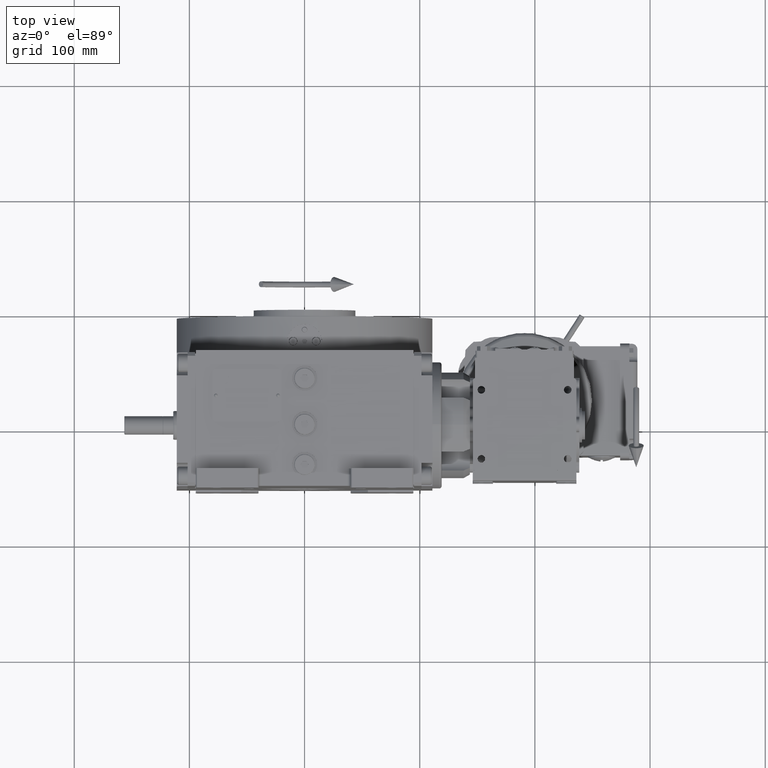
[diagram: clean part render]
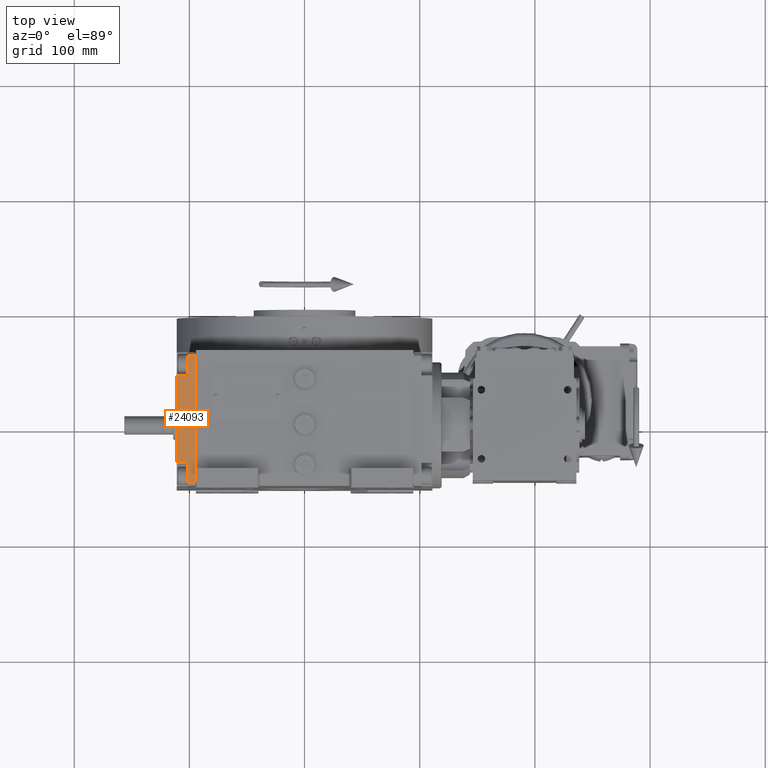
[diagram: same view with one face highlighted and labeled with its STEP entity id]
A machine part, top view. The second image highlights one B-rep face of the part: STEP entity #24093.
In plain terms, the highlighted planar face has unit normal (-0, 0, 1).
Its self-contained STEP definition (entity closure, byte-faithful):
#756 = DIRECTION ( 'NONE',  ( -1.000000000000000000, -5.519388699431657872E-29, -3.164135620181696140E-14 ) ) ;
#1301 = ORIENTED_EDGE ( 'NONE', *, *, #67027, .T. ) ;
#3220 = DIRECTION ( 'NONE',  ( -1.000000000000000000, -5.519388699431657872E-29, -3.164135620181696140E-14 ) ) ;
#3773 = ORIENTED_EDGE ( 'NONE', *, *, #94769, .T. ) ;
#4130 = LINE ( 'NONE', #10723, #74815 ) ;
#8453 = VERTEX_POINT ( 'NONE', #23659 ) ;
#8973 = VERTEX_POINT ( 'NONE', #70602 ) ;
#9379 = LINE ( 'NONE', #65544, #37175 ) ;
#10186 = ORIENTED_EDGE ( 'NONE', *, *, #10409, .F. ) ;
#10409 = EDGE_CURVE ( 'NONE', #89058, #8973, #9379, .T. ) ;
#10723 = CARTESIAN_POINT ( 'NONE',  ( -33.50000000000184741, -16.00000000000000000, -58.00000000000105160 ) ) ;
#11220 = DIRECTION ( 'NONE',  ( -1.000000000000000000, -5.519388699431657872E-29, -3.164135620181696140E-14 ) ) ;
#12253 = CARTESIAN_POINT ( 'NONE',  ( 62.49999999999813127, 0.000000000000000000, -57.99999999999788969 ) ) ;
#15434 = ORIENTED_EDGE ( 'NONE', *, *, #56815, .T. ) ;
#18865 = VERTEX_POINT ( 'NONE', #93141 ) ;
#20063 = ORIENTED_EDGE ( 'NONE', *, *, #22031, .F. ) ;
#21143 = CARTESIAN_POINT ( 'NONE',  ( -33.50000000000184741, -6.499999999999992006, -58.00000000000105160 ) ) ;
#22031 = EDGE_CURVE ( 'NONE', #8453, #55339, #37527, .T. ) ;
#23003 = VECTOR ( 'NONE', #11220, 1000.000000000000000 ) ;
#23213 = DIRECTION ( 'NONE',  ( -5.519166210550862449E-29, -1.000000000000000000, -4.218847493575605898E-15 ) ) ;
#23659 = CARTESIAN_POINT ( 'NONE',  ( 42.49999999999815969, -16.00000000000000000, -57.99999999999894129 ) ) ;
#24093 = ADVANCED_FACE ( 'NONE', ( #90199 ), #88217, .T. ) ;
#24426 = VECTOR ( 'NONE', #756, 1000.000000000000000 ) ;
#26274 = CARTESIAN_POINT ( 'NONE',  ( 59.49999999999815259, 0.000000000000000000, -57.99999999999793943 ) ) ;
#26531 = VERTEX_POINT ( 'NONE', #26274 ) ;
#30289 = VECTOR ( 'NONE', #23213, 1000.000000000000000 ) ;
#31928 = CARTESIAN_POINT ( 'NONE',  ( -33.50000000000184741, -6.499999999999992006, -58.00000000000105160 ) ) ;
#32093 = LINE ( 'NONE', #77684, #24426 ) ;
#36278 = VECTOR ( 'NONE', #3220, 1000.000000000000000 ) ;
#37175 = VECTOR ( 'NONE', #72143, 1000.000000000000000 ) ;
#37527 = LINE ( 'NONE', #99289, #57862 ) ;
#40042 = LINE ( 'NONE', #31928, #61878 ) ;
#40586 = CARTESIAN_POINT ( 'NONE',  ( 59.49999999999815259, 0.000000000000000000, -57.99999999999793943 ) ) ;
#44526 = EDGE_CURVE ( 'NONE', #26531, #89058, #80065, .T. ) ;
#49132 = EDGE_CURVE ( 'NONE', #64613, #8973, #40042, .T. ) ;
#51098 = LINE ( 'NONE', #52591, #30289 ) ;
#52591 = CARTESIAN_POINT ( 'NONE',  ( 59.49999999999815259, 0.000000000000000000, -57.99999999999793943 ) ) ;
#55339 = VERTEX_POINT ( 'NONE', #82870 ) ;
#56815 = EDGE_CURVE ( 'NONE', #26531, #18865, #51098, .T. ) ;
#57862 = VECTOR ( 'NONE', #60802, 1000.000000000000000 ) ;
#60802 = DIRECTION ( 'NONE',  ( 5.519166210550862449E-29, 1.000000000000000000, 4.218847493575605898E-15 ) ) ;
#61878 = VECTOR ( 'NONE', #93719, 1000.000000000000000 ) ;
#64613 = VERTEX_POINT ( 'NONE', #21143 ) ;
#65544 = CARTESIAN_POINT ( 'NONE',  ( -50.50000000000184741, 0.000000000000000000, -58.00000000000108002 ) ) ;
#66121 = ORIENTED_EDGE ( 'NONE', *, *, #49132, .T. ) ;
#67027 = EDGE_CURVE ( 'NONE', #90578, #64613, #4130, .T. ) ;
#67091 = ORIENTED_EDGE ( 'NONE', *, *, #84921, .T. ) ;
#67340 = CARTESIAN_POINT ( 'NONE',  ( -33.50000000000184741, -16.00000000000000000, -58.00000000000105160 ) ) ;
#70602 = CARTESIAN_POINT ( 'NONE',  ( -50.50000000000184741, -6.499999999999992006, -58.00000000000108002 ) ) ;
#72143 = DIRECTION ( 'NONE',  ( -5.519166210550862449E-29, -1.000000000000000000, -4.218847493575605898E-15 ) ) ;
#73968 = DIRECTION ( 'NONE',  ( 5.519166210550862449E-29, 1.000000000000000000, 4.218847493575605898E-15 ) ) ;
#74815 = VECTOR ( 'NONE', #73968, 1000.000000000000000 ) ;
#77684 = CARTESIAN_POINT ( 'NONE',  ( 59.49999999999815259, -6.499999999999992006, -57.99999999999793943 ) ) ;
#80065 = LINE ( 'NONE', #40586, #23003 ) ;
#80152 = CARTESIAN_POINT ( 'NONE',  ( 42.49999999999815969, -16.00000000000000000, -57.99999999999894129 ) ) ;
#82587 = DIRECTION ( 'NONE',  ( 3.164135620181696140E-14, -4.218847493575605898E-15, -1.000000000000000000 ) ) ;
#82870 = CARTESIAN_POINT ( 'NONE',  ( 42.49999999999815969, -6.499999999999992006, -57.99999999999894129 ) ) ;
#84921 = EDGE_CURVE ( 'NONE', #8453, #90578, #95867, .T. ) ;
#88217 = PLANE ( 'NONE',  #89005 ) ;
#89005 = AXIS2_PLACEMENT_3D ( 'NONE', #12253, #82587, #95812 ) ;
#89058 = VERTEX_POINT ( 'NONE', #98221 ) ;
#90199 = FACE_OUTER_BOUND ( 'NONE', #96994, .T. ) ;
#90578 = VERTEX_POINT ( 'NONE', #67340 ) ;
#93141 = CARTESIAN_POINT ( 'NONE',  ( 59.49999999999815259, -6.499999999999992006, -57.99999999999793943 ) ) ;
#93719 = DIRECTION ( 'NONE',  ( -1.000000000000000000, -5.519388699431657872E-29, -3.164135620181696140E-14 ) ) ;
#94769 = EDGE_CURVE ( 'NONE', #18865, #55339, #32093, .T. ) ;
#95812 = DIRECTION ( 'NONE',  ( -1.000000000000000000, -5.519388699431657872E-29, -3.164135620181696140E-14 ) ) ;
#95867 = LINE ( 'NONE', #80152, #36278 ) ;
#96994 = EDGE_LOOP ( 'NONE', ( #3773, #20063, #67091, #1301, #66121, #10186, #99913, #15434 ) ) ;
#98221 = CARTESIAN_POINT ( 'NONE',  ( -50.50000000000184741, 0.000000000000000000, -58.00000000000108002 ) ) ;
#99289 = CARTESIAN_POINT ( 'NONE',  ( 42.49999999999815969, -16.00000000000000000, -57.99999999999894129 ) ) ;
#99913 = ORIENTED_EDGE ( 'NONE', *, *, #44526, .F. ) ;